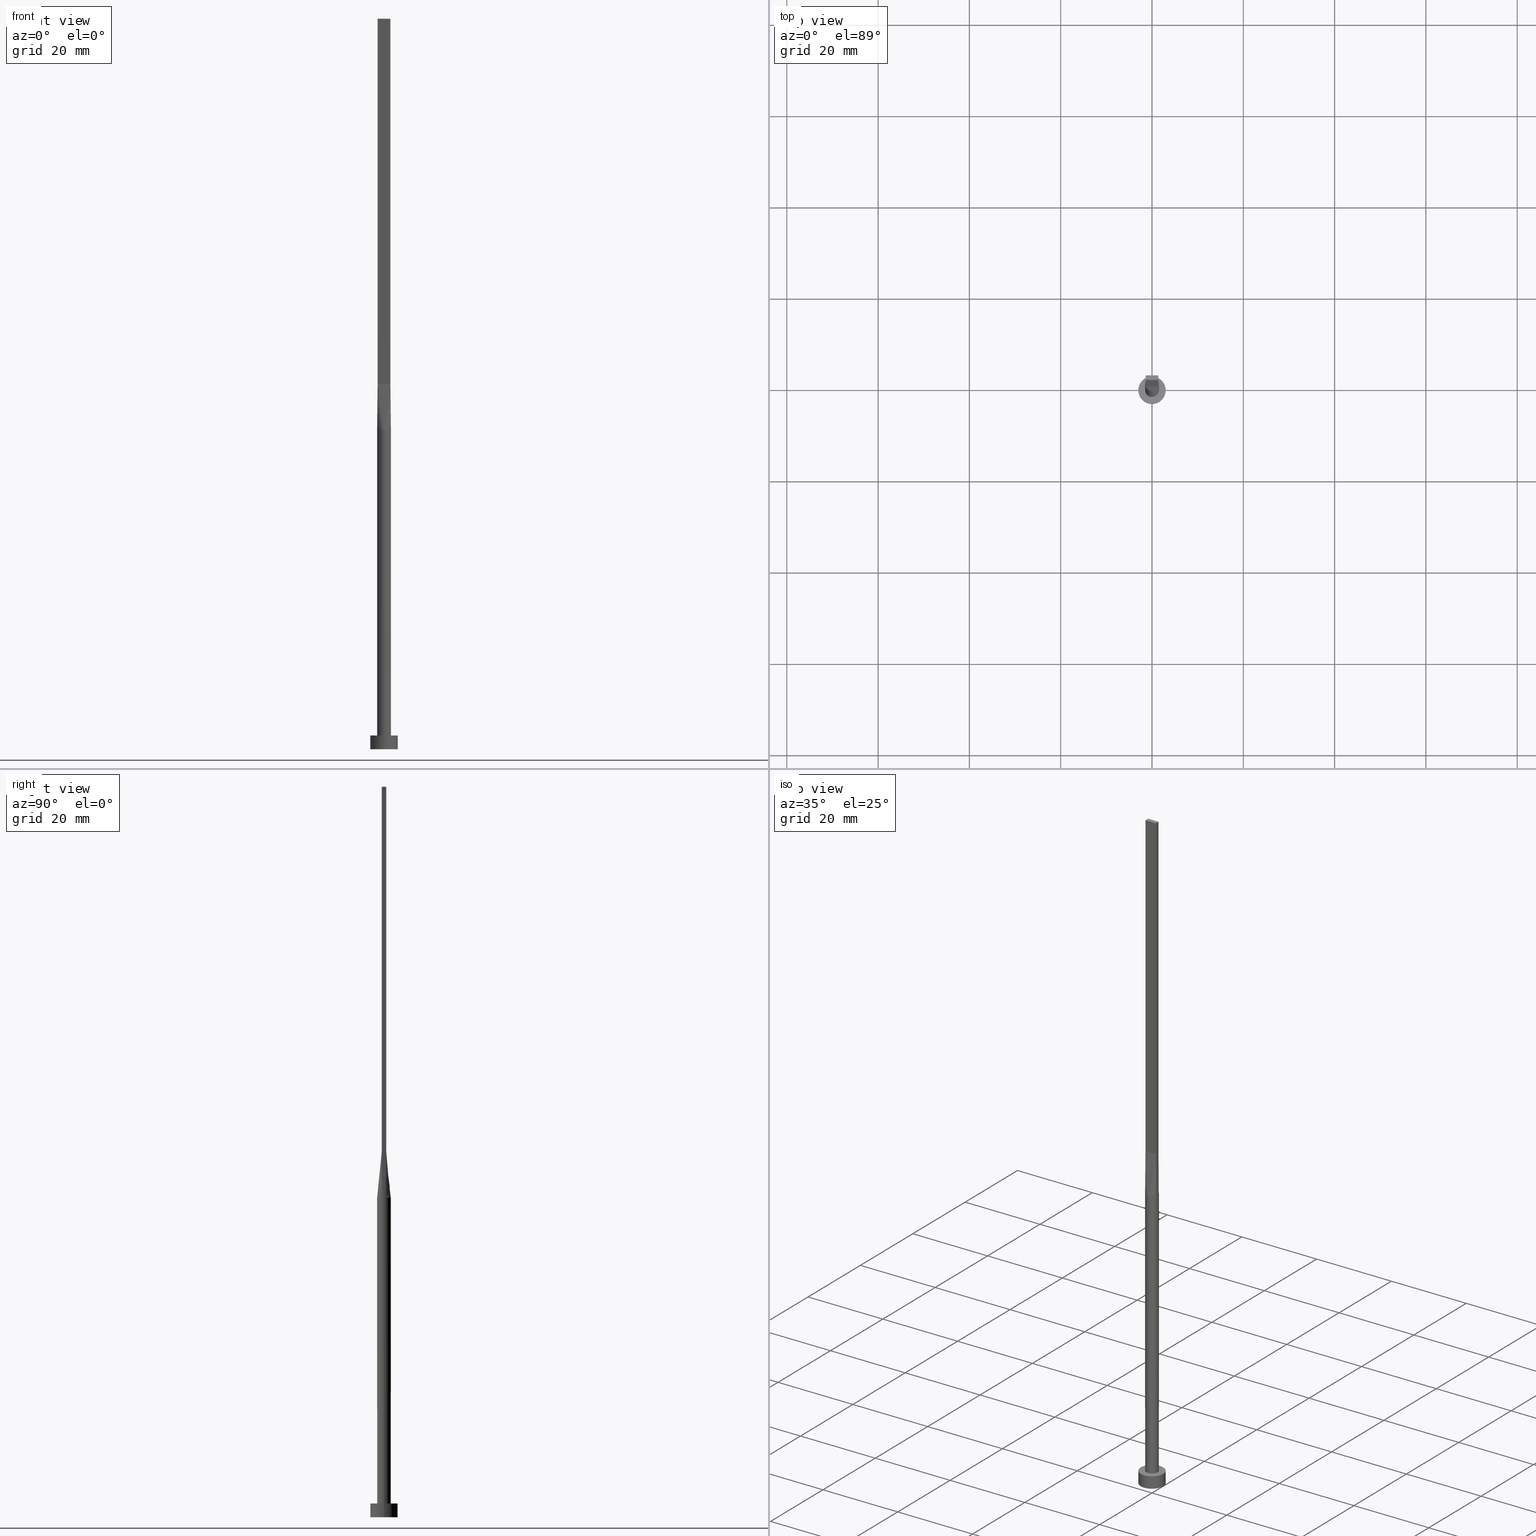
[diagram: canonical four-view strip — front | top / right | iso, engineering-drawing reading convention]
A machine part, canonical four-view strip (front | top / right | iso — engineering-drawing reading convention). The complete STEP part file that produces these views, byte-faithful:
ISO-10303-21;
HEADER;
FILE_DESCRIPTION (( 'STEP AP203' ),
    '1' );
FILE_NAME ('9490.STEP',
    '2026-02-12T09:07:40',
    ( '' ),
    ( '' ),
    'SwSTEP 2.0',
    'SolidWorks 2019',
    '' );
FILE_SCHEMA (( 'CONFIG_CONTROL_DESIGN' ));
ENDSEC;

DATA;
#1 = DIRECTION ( 'NONE',  ( -0.000000000000000000, -0.000000000000000000, -1.000000000000000000 ) ) ;
#2 = CARTESIAN_POINT ( 'NONE',  ( 1.412612867392256222, -0.5045045954972351421, 70.00000000000000000 ) ) ;
#3 = ORIENTED_EDGE ( 'NONE', *, *, #88, .T. ) ;
#4 = CARTESIAN_POINT ( 'NONE',  ( 0.8182264876570948253, 1.266912425724810110, 70.00000000000000000 ) ) ;
#5 = CARTESIAN_POINT ( 'NONE',  ( -1.412612867392256444, -0.5045045954972340319, 70.00000000000000000 ) ) ;
#6 = ORIENTED_EDGE ( 'NONE', *, *, #512, .F. ) ;
#7 = CARTESIAN_POINT ( 'NONE',  ( 1.373020107211261109, 0.6153643240040217455, 70.00000000000001421 ) ) ;
#8 = VERTEX_POINT ( 'NONE', #453 ) ;
#9 = EDGE_CURVE ( 'NONE', #415, #16, #509, .T. ) ;
#10 = ORIENTED_EDGE ( 'NONE', *, *, #210, .T. ) ;
#11 = PLANE ( 'NONE',  #291 ) ;
#12 = CARTESIAN_POINT ( 'NONE',  ( -1.316960349798174557, 0.7311494208568980468, 70.00000000000001421 ) ) ;
#13 = VECTOR ( 'NONE', #61, 1000.000000000000000 ) ;
#14 = CARTESIAN_POINT ( 'NONE',  ( -1.161819288130433891, 0.9587178835757675932, 70.00000000000001421 ) ) ;
#15 = CARTESIAN_POINT ( 'NONE',  ( 1.399999999999999689, 0.5000000000000002220, 160.0000000000000000 ) ) ;
#16 = VERTEX_POINT ( 'NONE', #312 ) ;
#17 = CARTESIAN_POINT ( 'NONE',  ( 1.283333333333333437, 0.5000000000000002220, 79.99999999999998579 ) ) ;
#18 = FACE_OUTER_BOUND ( 'NONE', #142, .T. ) ;
#19 = CC_DESIGN_PERSON_AND_ORGANIZATION_ASSIGNMENT ( #266, #539, ( #102 ) ) ;
#20 = ORIENTED_EDGE ( 'NONE', *, *, #365, .F. ) ;
#21 = AXIS2_PLACEMENT_3D ( 'NONE', #351, #124, #300 ) ;
#22 = CARTESIAN_POINT ( 'NONE',  ( -1.399999999999999911, -0.4999999999999995559, 80.00000000000000000 ) ) ;
#23 = CARTESIAN_POINT ( 'NONE',  ( -1.412646936588081381, 0.5045169241220069933, 70.00000000000000000 ) ) ;
#24 = CARTESIAN_POINT ( 'NONE',  ( -1.062433464748102407, 1.070418989248103525, 69.99999999999998579 ) ) ;
#25 = EDGE_CURVE ( 'NONE', #520, #415, #104, .T. ) ;
#26 = DIRECTION ( 'NONE',  ( -2.168404344971009361E-16, -1.000000000000000000, 0.000000000000000000 ) ) ;
#27 = ORIENTED_EDGE ( 'NONE', *, *, #529, .T. ) ;
#28 = CARTESIAN_POINT ( 'NONE',  ( 1.399999999999999911, -0.4999999999999997780, 160.0000000000000000 ) ) ;
#29 = CARTESIAN_POINT ( 'NONE',  ( -3.000000000000000444, 0.000000000000000000, 0.000000000000000000 ) ) ;
#30 = DIRECTION ( 'NONE',  ( -0.000000000000000000, -0.000000000000000000, -1.000000000000000000 ) ) ;
#31 = AXIS2_PLACEMENT_3D ( 'NONE', #190, #543, #376 ) ;
#32 = ORIENTED_EDGE ( 'NONE', *, *, #220, .T. ) ;
#33 = PLANE ( 'NONE',  #90 ) ;
#34 = EDGE_CURVE ( 'NONE', #57, #48, #232, .T. ) ;
#35 = PERSON_AND_ORGANIZATION ( #279, #153 ) ;
#36 = B_SPLINE_SURFACE_WITH_KNOTS ( 'NONE', 3, 1, ( 
 ( #185, #315 ),
 ( #359, #268 ),
 ( #449, #532 ),
 ( #488, #411 ),
 ( #82, #407 ),
 ( #5, #265 ) ),
 .UNSPECIFIED., .F., .F., .F.,
 ( 4, 2, 4 ),
 ( 2, 2 ),
 ( 0.000000000000000000, 0.5000000000000000000, 1.000000000000000000 ),
 ( 0.000000000000000000, 1.000000000000000000 ),
 .UNSPECIFIED. ) ;
#37 = AXIS2_PLACEMENT_3D ( 'NONE', #292, #397, #571 ) ;
#38 = COORDINATED_UNIVERSAL_TIME_OFFSET ( 1, 0, .AHEAD. ) ;
#39 = CARTESIAN_POINT ( 'NONE',  ( 1.399999999999999911, -0.4999999999999997780, 80.00000000000000000 ) ) ;
#40 = APPROVAL_DATE_TIME ( #307, #394 ) ;
#41 = DIRECTION ( 'NONE',  ( 1.000000000000000000, 0.000000000000000000, 0.000000000000000000 ) ) ;
#42 = ORIENTED_EDGE ( 'NONE', *, *, #504, .F. ) ;
#43 = EDGE_CURVE ( 'NONE', #238, #298, #75, .T. ) ;
#44 = EDGE_LOOP ( 'NONE', ( #466, #368, #481, #186 ) ) ;
#45 = ORIENTED_EDGE ( 'NONE', *, *, #485, .F. ) ;
#46 = AXIS2_PLACEMENT_3D ( 'NONE', #548, #325, #280 ) ;
#47 = CC_DESIGN_SECURITY_CLASSIFICATION ( #102, ( #465 ) ) ;
#48 = VERTEX_POINT ( 'NONE', #337 ) ;
#49 = ADVANCED_FACE ( 'NONE', ( #514 ), #106, .T. ) ;
#50 = EDGE_CURVE ( 'NONE', #323, #251, #184, .T. ) ;
#51 = ORIENTED_EDGE ( 'NONE', *, *, #108, .F. ) ;
#52 = VERTEX_POINT ( 'NONE', #400 ) ;
#53 = CARTESIAN_POINT ( 'NONE',  ( 1.500000000000000222, 1.836970198721030181E-16, 3.000000000000000000 ) ) ;
#54 = PLANE ( 'NONE',  #474 ) ;
#55 = ORIENTED_EDGE ( 'NONE', *, *, #523, .F. ) ;
#56 = CARTESIAN_POINT ( 'NONE',  ( 1.062433464748102407, 1.070418989248103525, 70.00000000000000000 ) ) ;
#57 = VERTEX_POINT ( 'NONE', #472 ) ;
#58 = CARTESIAN_POINT ( 'NONE',  ( 0.000000000000000000, 0.000000000000000000, 70.00000000000000000 ) ) ;
#59 = DIRECTION ( 'NONE',  ( 0.000000000000000000, 0.000000000000000000, 1.000000000000000000 ) ) ;
#60 = CC_DESIGN_APPROVAL ( #155, ( #258 ) ) ;
#61 = DIRECTION ( 'NONE',  ( 1.000000000000000000, -7.744301232039317914E-17, 0.000000000000000000 ) ) ;
#62 = B_SPLINE_CURVE_WITH_KNOTS ( 'NONE', 3,
 ( #422, #7, #500, #89, #461, #4, #230, #419, #92, #201, #552, #103, #152, #107, #14, #100, #381, #198 ),
 .UNSPECIFIED., .F., .F.,
 ( 4, 2, 2, 2, 2, 2, 2, 2, 4 ),
 ( 0.000000000000000000, 0.1250000000000000000, 0.2500000000000000000, 0.3750000000000000000, 0.5000000000000000000, 0.6250000000000000000, 0.7500000000000000000, 0.8750000000000000000, 1.000000000000000000 ),
 .UNSPECIFIED. ) ;
#63 = VECTOR ( 'NONE', #30, 1000.000000000000000 ) ;
#64 = VECTOR ( 'NONE', #26, 1000.000000000000000 ) ;
#65 = DIRECTION ( 'NONE',  ( -0.000000000000000000, -0.000000000000000000, -1.000000000000000000 ) ) ;
#66 = ORIENTED_EDGE ( 'NONE', *, *, #385, .T. ) ;
#67 = CARTESIAN_POINT ( 'NONE',  ( -0.6732153042498576490, 1.351288176626052495, 70.00000000000000000 ) ) ;
#68 = EDGE_CURVE ( 'NONE', #146, #251, #249, .T. ) ;
#69 = CARTESIAN_POINT ( 'NONE',  ( -1.166666666666666963, -0.4999999999999995559, 79.99999999999998579 ) ) ;
#70 = EDGE_LOOP ( 'NONE', ( #437, #191, #369, #211, #542 ) ) ;
#71 = CARTESIAN_POINT ( 'NONE',  ( -1.399999999999999689, 0.5000000000000002220, 80.00000000000000000 ) ) ;
#72 = DIRECTION ( 'NONE',  ( -0.000000000000000000, -0.000000000000000000, -1.000000000000000000 ) ) ;
#73 = ORIENTED_EDGE ( 'NONE', *, *, #365, .T. ) ;
#74 = COORDINATED_UNIVERSAL_TIME_OFFSET ( 1, 0, .AHEAD. ) ;
#75 = CIRCLE ( 'NONE', #412, 1.500000000000000222 ) ;
#76 = EDGE_CURVE ( 'NONE', #468, #323, #384, .T. ) ;
#77 = VECTOR ( 'NONE', #550, 1000.000000000000000 ) ;
#78 = ORIENTED_EDGE ( 'NONE', *, *, #318, .F. ) ;
#79 = CARTESIAN_POINT ( 'NONE',  ( 1.373020107211260665, -0.6153643240040224116, 70.00000000000001421 ) ) ;
#80 = CARTESIAN_POINT ( 'NONE',  ( 1.062433464748102629, -1.070418989248103747, 69.99999999999998579 ) ) ;
#81 = APPROVAL_DATE_TIME ( #398, #155 ) ;
#82 = CARTESIAN_POINT ( 'NONE',  ( -1.469173953365107144, -0.3461335547732520834, 70.00000000000000000 ) ) ;
#83 = AXIS2_PLACEMENT_3D ( 'NONE', #363, #306, #41 ) ;
#84 = EDGE_CURVE ( 'NONE', #8, #269, #208, .T. ) ;
#85 = ORIENTED_EDGE ( 'NONE', *, *, #464, .F. ) ;
#86 = ORIENTED_EDGE ( 'NONE', *, *, #233, .T. ) ;
#87 = CARTESIAN_POINT ( 'NONE',  ( -1.399999999999999689, 0.5000000000000002220, 80.00000000000000000 ) ) ;
#88 = EDGE_CURVE ( 'NONE', #238, #16, #563, .T. ) ;
#89 = CARTESIAN_POINT ( 'NONE',  ( 1.161819288130433891, 0.9587178835757675932, 70.00000000000000000 ) ) ;
#90 = AXIS2_PLACEMENT_3D ( 'NONE', #399, #396, #570 ) ;
#91 = ORIENTED_EDGE ( 'NONE', *, *, #529, .F. ) ;
#92 = CARTESIAN_POINT ( 'NONE',  ( 0.1761797990592590679, 1.500000000000000222, 70.00000000000000000 ) ) ;
#93 = CARTESIAN_POINT ( 'NONE',  ( 1.500000000000000222, 1.836970198721030181E-16, 70.00000000000000000 ) ) ;
#94 = PLANE ( 'NONE',  #577 ) ;
#95 = CARTESIAN_POINT ( 'NONE',  ( 0.000000000000000000, 0.000000000000000000, 0.000000000000000000 ) ) ;
#96 = EDGE_LOOP ( 'NONE', ( #45, #308, #138, #463, #272, #281 ) ) ;
#97 = DIRECTION ( 'NONE',  ( 1.000000000000000000, 0.000000000000000000, -0.000000000000000000 ) ) ;
#98 = DIRECTION ( 'NONE',  ( -1.000000000000000000, 0.000000000000000000, 0.000000000000000000 ) ) ;
#99 =( NAMED_UNIT ( * ) SI_UNIT ( $, .STERADIAN. ) SOLID_ANGLE_UNIT ( ) );
#100 = CARTESIAN_POINT ( 'NONE',  ( -1.316960349798174557, 0.7311494208568980468, 70.00000000000001421 ) ) ;
#101 = CARTESIAN_POINT ( 'NONE',  ( 1.500000000000000000, 1.053334699963867185E-17, 70.00000000000000000 ) ) ;
#102 = SECURITY_CLASSIFICATION ( '', '', #442 ) ;
#103 = CARTESIAN_POINT ( 'NONE',  ( -0.6732153042498576490, 1.351288176626052495, 70.00000000000000000 ) ) ;
#104 = LINE ( 'NONE', #93, #334 ) ;
#105 = CARTESIAN_POINT ( 'NONE',  ( -0.6732153042498583151, -1.351288176626052051, 70.00000000000000000 ) ) ;
#106 = CYLINDRICAL_SURFACE ( 'NONE', #173, 3.000000000000000444 ) ;
#107 = CARTESIAN_POINT ( 'NONE',  ( -1.062433464748102407, 1.070418989248103525, 69.99999999999998579 ) ) ;
#108 = EDGE_CURVE ( 'NONE', #505, #298, #165, .T. ) ;
#109 = CARTESIAN_POINT ( 'NONE',  ( 0.5833333333333348136, 0.5000000000000002220, 79.99999999999998579 ) ) ;
#110 = CARTESIAN_POINT ( 'NONE',  ( 1.399999999999999689, 0.3333333333333350912, 79.99999999999998579 ) ) ;
#111 = DIRECTION ( 'NONE',  ( -2.168404344971008868E-16, 1.000000000000000000, -0.000000000000000000 ) ) ;
#112 = CARTESIAN_POINT ( 'NONE',  ( -1.399999999999999689, 0.5000000000000002220, 80.00000000000000000 ) ) ;
#113 = VECTOR ( 'NONE', #361, 1000.000000000000114 ) ;
#114 = CARTESIAN_POINT ( 'NONE',  ( -1.406306433696128178, -0.5022522977486166829, 75.00000000000001421 ) ) ;
#115 = EDGE_LOOP ( 'NONE', ( #27, #389, #6, #460 ) ) ;
#116 = CARTESIAN_POINT ( 'NONE',  ( -1.373020107211261331, 0.6153643240040217455, 70.00000000000001421 ) ) ;
#117 = CARTESIAN_POINT ( 'NONE',  ( 0.000000000000000000, 0.000000000000000000, 3.000000000000000000 ) ) ;
#118 = ORIENTED_EDGE ( 'NONE', *, *, #445, .F. ) ;
#119 = CARTESIAN_POINT ( 'NONE',  ( 0.6732153042498577600, 1.351288176626052717, 70.00000000000000000 ) ) ;
#120 = CC_DESIGN_DATE_AND_TIME_ASSIGNMENT ( #212, #366, ( #258 ) ) ;
#121 = EDGE_LOOP ( 'NONE', ( #78, #493 ) ) ;
#122 = APPROVAL_STATUS ( 'not_yet_approved' ) ;
#123 = CARTESIAN_POINT ( 'NONE',  ( 1.399999999999999911, -0.4999999999999997780, 80.00000000000000000 ) ) ;
#124 = DIRECTION ( 'NONE',  ( -0.000000000000000000, -0.000000000000000000, -1.000000000000000000 ) ) ;
#125 = CARTESIAN_POINT ( 'NONE',  ( 1.166666666666666075, -0.4999999999999997780, 79.99999999999998579 ) ) ;
#126 = VECTOR ( 'NONE', #304, 1000.000000000000000 ) ;
#127 = CALENDAR_DATE ( 2026, 12, 2 ) ;
#128 = CARTESIAN_POINT ( 'NONE',  ( 0.8182264876570946033, -1.266912425724810998, 70.00000000000000000 ) ) ;
#129 = CARTESIAN_POINT ( 'NONE',  ( 1.399999999999999689, 0.5000000000000002220, 160.0000000000000000 ) ) ;
#130 = COORDINATED_UNIVERSAL_TIME_OFFSET ( 1, 0, .AHEAD. ) ;
#131 = CARTESIAN_POINT ( 'NONE',  ( 1.161819288130433669, -0.9587178835757682593, 70.00000000000001421 ) ) ;
#132 = DIRECTION ( 'NONE',  ( 2.168404344971009361E-16, 1.000000000000000000, 0.000000000000000000 ) ) ;
#133 = EDGE_CURVE ( 'NONE', #293, #52, #348, .T. ) ;
#134 = CALENDAR_DATE ( 2026, 12, 2 ) ;
#135 = CARTESIAN_POINT ( 'NONE',  ( 0.4666666666666653418, -0.4999999999999995559, 79.99999999999998579 ) ) ;
#136 = DATE_TIME_ROLE ( 'classification_date' ) ;
#137 = ORIENTED_EDGE ( 'NONE', *, *, #50, .T. ) ;
#138 = ORIENTED_EDGE ( 'NONE', *, *, #9, .T. ) ;
#139 = DESIGN_CONTEXT ( 'detailed design', #287, 'design' ) ;
#140 = EDGE_CURVE ( 'NONE', #497, #251, #204, .T. ) ;
#141 = ORIENTED_EDGE ( 'NONE', *, *, #432, .T. ) ;
#142 = EDGE_LOOP ( 'NONE', ( #227, #450, #326, #328 ) ) ;
#143 = DIRECTION ( 'NONE',  ( 0.000000000000000000, 0.000000000000000000, 1.000000000000000000 ) ) ;
#144 = APPROVAL_PERSON_ORGANIZATION ( #35, #155, #408 ) ;
#145 = CARTESIAN_POINT ( 'NONE',  ( -0.8182264876570950474, 1.266912425724810554, 70.00000000000000000 ) ) ;
#146 = VERTEX_POINT ( 'NONE', #23 ) ;
#147 = DIRECTION ( 'NONE',  ( -2.168404344971009361E-16, -1.000000000000000000, 0.000000000000000000 ) ) ;
#148 = ORIENTED_EDGE ( 'NONE', *, *, #553, .T. ) ;
#149 = CARTESIAN_POINT ( 'NONE',  ( 1.161819288130433891, 0.9587178835757675932, 70.00000000000000000 ) ) ;
#150 = LINE ( 'NONE', #329, #113 ) ;
#151 = ADVANCED_FACE ( 'NONE', ( #336 ), #189, .T. ) ;
#152 = CARTESIAN_POINT ( 'NONE',  ( -0.8182264876570950474, 1.266912425724810554, 70.00000000000000000 ) ) ;
#153 = ORGANIZATION ( 'NEUR�EN�', 'NEUR�EN�', '' ) ;
#154 = CARTESIAN_POINT ( 'NONE',  ( 1.406306433696127955, -0.5022522977486173490, 75.00000000000001421 ) ) ;
#155 = APPROVAL ( #255, 'NEUR�EN�' ) ;
#156 = DIRECTION ( 'NONE',  ( 1.000000000000000000, 0.000000000000000000, 0.000000000000000000 ) ) ;
#157 = ADVANCED_FACE ( 'NONE', ( #217 ), #257, .F. ) ;
#158 = CARTESIAN_POINT ( 'NONE',  ( -0.4666666666666679508, -0.4999999999999995559, 79.99999999999998579 ) ) ;
#159 = CARTESIAN_POINT ( 'NONE',  ( 0.8166666666666677621, 0.5000000000000002220, 79.99999999999998579 ) ) ;
#160 = DIRECTION ( 'NONE',  ( -1.000000000000000000, 0.000000000000000000, 0.000000000000000000 ) ) ;
#161 = CARTESIAN_POINT ( 'NONE',  ( -0.8166666666666652086, 0.5000000000000002220, 79.99999999999998579 ) ) ;
#162 = FACE_OUTER_BOUND ( 'NONE', #277, .T. ) ;
#163 = CIRCLE ( 'NONE', #254, 3.000000000000000444 ) ;
#164 = AXIS2_PLACEMENT_3D ( 'NONE', #95, #459, #533 ) ;
#165 = LINE ( 'NONE', #114, #209 ) ;
#166 = DIRECTION ( 'NONE',  ( 0.001261285608005576668, -0.0004504591457162014255, 0.9999991031221843185 ) ) ;
#167 = CARTESIAN_POINT ( 'NONE',  ( -1.062433464748102852, -1.070418989248103081, 70.00000000000000000 ) ) ;
#168 = EDGE_LOOP ( 'NONE', ( #343, #85, #458, #410 ) ) ;
#169 = DIRECTION ( 'NONE',  ( 0.000000000000000000, 0.000000000000000000, 1.000000000000000000 ) ) ;
#170 = CARTESIAN_POINT ( 'NONE',  ( 0.8166666666666658747, -0.4999999999999997780, 79.99999999999998579 ) ) ;
#171 = PERSON_AND_ORGANIZATION_ROLE ( 'creator' ) ;
#172 = CARTESIAN_POINT ( 'NONE',  ( 0.000000000000000000, 0.000000000000000000, 70.00000000000000000 ) ) ;
#173 = AXIS2_PLACEMENT_3D ( 'NONE', #226, #1, #495 ) ;
#174 = LINE ( 'NONE', #129, #126 ) ;
#175 = PRODUCT_DEFINITION_SHAPE ( 'NONE', 'NONE',  #258 ) ;
#176 = APPROVAL_DATE_TIME ( #252, #202 ) ;
#177 = DIRECTION ( 'NONE',  ( 1.000000000000000000, 0.000000000000000000, 0.000000000000000000 ) ) ;
#178 = FACE_BOUND ( 'NONE', #121, .T. ) ;
#179 = ADVANCED_FACE ( 'NONE', ( #303 ), #405, .T. ) ;
#180 = CARTESIAN_POINT ( 'NONE',  ( 1.283333333333332993, -0.4999999999999997780, 79.99999999999998579 ) ) ;
#181 = DIRECTION ( 'NONE',  ( 1.000000000000000000, 2.664535259100375697E-15, 0.000000000000000000 ) ) ;
#182 = MECHANICAL_CONTEXT ( 'NONE', #330, 'mechanical' ) ;
#183 = ORIENTED_EDGE ( 'NONE', *, *, #318, .T. ) ;
#184 = LINE ( 'NONE', #87, #576 ) ;
#185 = CARTESIAN_POINT ( 'NONE',  ( -1.412612867392256444, 0.5045045954972343649, 70.00000000000000000 ) ) ;
#186 = ORIENTED_EDGE ( 'NONE', *, *, #406, .T. ) ;
#187 = CARTESIAN_POINT ( 'NONE',  ( 1.399999999999999689, -0.1666666666666641039, 79.99999999999998579 ) ) ;
#188 = VERTEX_POINT ( 'NONE', #403 ) ;
#189 = B_SPLINE_SURFACE_WITH_KNOTS ( 'NONE', 3, 1, ( 
 ( #476, #433 ),
 ( #380, #568 ),
 ( #206, #69 ),
 ( #393, #244 ),
 ( #167, #430 ),
 ( #386, #556 ),
 ( #105, #158 ),
 ( #338, #560 ),
 ( #342, #574 ),
 ( #357, #448 ),
 ( #525, #215 ),
 ( #441, #135 ),
 ( #128, #484 ),
 ( #80, #170 ),
 ( #131, #572 ),
 ( #443, #125 ),
 ( #79, #180 ),
 ( #537, #39 ) ),
 .UNSPECIFIED., .F., .F., .F.,
 ( 4, 2, 2, 2, 2, 2, 2, 2, 4 ),
 ( 2, 2 ),
 ( 0.000000000000000000, 0.1250000000000000000, 0.2500000000000000000, 0.3750000000000000000, 0.5000000000000000000, 0.6250000000000000000, 0.7500000000000000000, 0.8750000000000000000, 1.000000000000000000 ),
 ( 0.000000000000000000, 1.000000000000000000 ),
 .UNSPECIFIED. ) ;
#190 = CARTESIAN_POINT ( 'NONE',  ( 0.000000000000000000, 0.000000000000000000, 3.000000000000000000 ) ) ;
#191 = ORIENTED_EDGE ( 'NONE', *, *, #485, .T. ) ;
#192 = LINE ( 'NONE', #378, #77 ) ;
#193 = AXIS2_PLACEMENT_3D ( 'NONE', #538, #580, #181 ) ;
#194 = DIRECTION ( 'NONE',  ( -0.000000000000000000, -0.000000000000000000, -1.000000000000000000 ) ) ;
#195 = EDGE_LOOP ( 'NONE', ( #536, #20 ) ) ;
#196 = DIRECTION ( 'NONE',  ( 0.000000000000000000, 0.000000000000000000, 1.000000000000000000 ) ) ;
#197 = ADVANCED_FACE ( 'NONE', ( #178, #409 ), #11, .T. ) ;
#198 = CARTESIAN_POINT ( 'NONE',  ( -1.412646936588081381, 0.5045169241220069933, 70.00000000000000000 ) ) ;
#199 = ORIENTED_EDGE ( 'NONE', *, *, #140, .F. ) ;
#200 = CARTESIAN_POINT ( 'NONE',  ( -3.000000000000000444, 0.000000000000000000, 3.000000000000000000 ) ) ;
#201 = CARTESIAN_POINT ( 'NONE',  ( -0.1761797990592590402, 1.499999999999999778, 69.99999999999998579 ) ) ;
#202 = APPROVAL ( #535, 'NEUR�EN�' ) ;
#203 = LOCAL_TIME ( 10, 7, 40.00000000000000000, #527 ) ;
#204 = LINE ( 'NONE', #240, #544 ) ;
#205 = PLANE ( 'NONE',  #37 ) ;
#206 = CARTESIAN_POINT ( 'NONE',  ( -1.316960349798174557, -0.7311494208568978248, 70.00000000000000000 ) ) ;
#207 = CARTESIAN_POINT ( 'NONE',  ( 0.9333333333333342363, 0.5000000000000002220, 79.99999999999998579 ) ) ;
#208 = LINE ( 'NONE', #200, #63 ) ;
#209 = VECTOR ( 'NONE', #473, 1000.000000000000114 ) ;
#210 = EDGE_CURVE ( 'NONE', #522, #146, #62, .T. ) ;
#211 = ORIENTED_EDGE ( 'NONE', *, *, #76, .F. ) ;
#212 = DATE_AND_TIME ( #362, #222 ) ;
#213 = FACE_OUTER_BOUND ( 'NONE', #507, .T. ) ;
#214 = CARTESIAN_POINT ( 'NONE',  ( 3.000000000000000444, 3.673940397442060361E-16, 3.000000000000000000 ) ) ;
#215 = CARTESIAN_POINT ( 'NONE',  ( 0.2333333333333319215, -0.4999999999999995559, 79.99999999999998579 ) ) ;
#216 = APPLICATION_PROTOCOL_DEFINITION ( 'international standard', 'config_control_design', 1994, #287 ) ;
#217 = FACE_OUTER_BOUND ( 'NONE', #168, .T. ) ;
#218 = FACE_OUTER_BOUND ( 'NONE', #115, .T. ) ;
#219 = PERSON_AND_ORGANIZATION_ROLE ( 'design_supplier' ) ;
#220 = EDGE_CURVE ( 'NONE', #188, #468, #333, .T. ) ;
#221 = DIRECTION ( 'NONE',  ( -0.000000000000000000, -0.000000000000000000, -1.000000000000000000 ) ) ;
#222 = LOCAL_TIME ( 10, 7, 40.00000000000000000, #299 ) ;
#223 = DIRECTION ( 'NONE',  ( -1.000000000000000000, -2.168404344971008868E-16, 0.000000000000000000 ) ) ;
#224 = SHAPE_DEFINITION_REPRESENTATION ( #175, #518 ) ;
#225 = CC_DESIGN_PERSON_AND_ORGANIZATION_ASSIGNMENT ( #355, #579, ( #258 ) ) ;
#226 = CARTESIAN_POINT ( 'NONE',  ( 0.000000000000000000, 0.000000000000000000, 3.000000000000000000 ) ) ;
#227 = ORIENTED_EDGE ( 'NONE', *, *, #523, .T. ) ;
#228 = CC_DESIGN_APPROVAL ( #394, ( #102 ) ) ;
#229 = CARTESIAN_POINT ( 'NONE',  ( 1.399999999999999911, -0.3333333333333315385, 79.99999999999998579 ) ) ;
#230 = CARTESIAN_POINT ( 'NONE',  ( 0.6732153042498577600, 1.351288176626052717, 70.00000000000000000 ) ) ;
#231 = CARTESIAN_POINT ( 'NONE',  ( 1.399999999999999689, 0.5000000000000002220, 80.00000000000000000 ) ) ;
#232 = LINE ( 'NONE', #541, #263 ) ;
#233 = EDGE_CURVE ( 'NONE', #298, #188, #555, .T. ) ;
#234 = CARTESIAN_POINT ( 'NONE',  ( -0.1166666666666646840, 0.5000000000000002220, 79.99999999999998579 ) ) ;
#235 = CARTESIAN_POINT ( 'NONE',  ( 1.399999999999999689, 0.5000000000000002220, 80.00000000000000000 ) ) ;
#236 = CIRCLE ( 'NONE', #46, 3.000000000000000444 ) ;
#237 = CARTESIAN_POINT ( 'NONE',  ( -0.3520402531411749858, 1.468082505288407891, 70.00000000000001421 ) ) ;
#238 = VERTEX_POINT ( 'NONE', #288 ) ;
#239 = ADVANCED_FACE ( 'NONE', ( #477 ), #36, .T. ) ;
#240 = CARTESIAN_POINT ( 'NONE',  ( -1.399999999999999689, 0.5000000000000002220, 160.0000000000000000 ) ) ;
#241 = DIRECTION ( 'NONE',  ( 0.000000000000000000, 0.000000000000000000, 1.000000000000000000 ) ) ;
#242 = AXIS2_PLACEMENT_3D ( 'NONE', #58, #196, #284 ) ;
#243 = CARTESIAN_POINT ( 'NONE',  ( -1.406306433696127955, 0.5022522977486171269, 75.00000000000001421 ) ) ;
#244 = CARTESIAN_POINT ( 'NONE',  ( -0.9333333333333340143, -0.4999999999999995559, 79.99999999999998579 ) ) ;
#245 = CARTESIAN_POINT ( 'NONE',  ( 1.373020107211261109, 0.6153643240040217455, 70.00000000000001421 ) ) ;
#246 = CARTESIAN_POINT ( 'NONE',  ( 1.499999999999999556, 0.1732137494637011610, 70.00000000000000000 ) ) ;
#247 = CARTESIAN_POINT ( 'NONE',  ( -1.500000000000000222, 0.000000000000000000, 70.00000000000000000 ) ) ;
#248 = CARTESIAN_POINT ( 'NONE',  ( -1.399999999999999911, -0.4999999999999995559, 160.0000000000000000 ) ) ;
#249 = LINE ( 'NONE', #243, #496 ) ;
#250 = EDGE_CURVE ( 'NONE', #188, #520, #285, .T. ) ;
#251 = VERTEX_POINT ( 'NONE', #372 ) ;
#252 = DATE_AND_TIME ( #134, #390 ) ;
#253 = AXIS2_PLACEMENT_3D ( 'NONE', #417, #547, #324 ) ;
#254 = AXIS2_PLACEMENT_3D ( 'NONE', #274, #503, #456 ) ;
#255 = APPROVAL_STATUS ( 'not_yet_approved' ) ;
#256 = CYLINDRICAL_SURFACE ( 'NONE', #21, 1.500000000000000222 ) ;
#257 = PLANE ( 'NONE',  #510 ) ;
#258 = PRODUCT_DEFINITION ( 'NEZN�M�', '', #465, #139 ) ;
#259 = ADVANCED_FACE ( 'NONE', ( #364 ), #528, .T. ) ;
#260 = PRODUCT ( '9490', '9490', '', ( #182 ) ) ;
#261 = PERSON_AND_ORGANIZATION_ROLE ( 'design_owner' ) ;
#262 = CARTESIAN_POINT ( 'NONE',  ( -1.399999999999999911, -0.4999999999999995559, 80.00000000000000000 ) ) ;
#263 = VECTOR ( 'NONE', #429, 1000.000000000000000 ) ;
#264 = VECTOR ( 'NONE', #506, 1000.000000000000000 ) ;
#265 = CARTESIAN_POINT ( 'NONE',  ( -1.399999999999999911, -0.4999999999999995559, 80.00000000000000000 ) ) ;
#266 = PERSON_AND_ORGANIZATION ( #279, #153 ) ;
#267 = CARTESIAN_POINT ( 'NONE',  ( -1.399999999999999689, 0.5000000000000002220, 160.0000000000000000 ) ) ;
#268 = CARTESIAN_POINT ( 'NONE',  ( -1.399999999999999689, 0.3333333333333339255, 79.99999999999998579 ) ) ;
#269 = VERTEX_POINT ( 'NONE', #29 ) ;
#270 = CARTESIAN_POINT ( 'NONE',  ( 1.469173953365106700, -0.3461335547732530271, 70.00000000000001421 ) ) ;
#271 = APPROVAL_PERSON_ORGANIZATION ( #404, #394, #486 ) ;
#272 = ORIENTED_EDGE ( 'NONE', *, *, #432, .F. ) ;
#273 = EDGE_LOOP ( 'NONE', ( #141, #545, #51, #91, #314 ) ) ;
#274 = CARTESIAN_POINT ( 'NONE',  ( 0.000000000000000000, 0.000000000000000000, 0.000000000000000000 ) ) ;
#275 = DIRECTION ( 'NONE',  ( 1.000000000000000000, 0.000000000000000000, -0.000000000000000000 ) ) ;
#276 = ADVANCED_FACE ( 'NONE', ( #392 ), #256, .T. ) ;
#277 = EDGE_LOOP ( 'NONE', ( #42, #421, #73, #413 ) ) ;
#278 = CARTESIAN_POINT ( 'NONE',  ( 0.2333333333333351967, 0.5000000000000002220, 79.99999999999998579 ) ) ;
#279 = PERSON ( 'NEUR�EN�', 'NEUR�EN�', 'NEUR�EN�', ('NEUR�EN�'), ('NEUR�EN�'), ('NEUR�EN�') ) ;
#280 = DIRECTION ( 'NONE',  ( 1.000000000000000000, 0.000000000000000000, 0.000000000000000000 ) ) ;
#281 = ORIENTED_EDGE ( 'NONE', *, *, #210, .F. ) ;
#282 = CARTESIAN_POINT ( 'NONE',  ( -0.5833333333333314830, 0.5000000000000002220, 79.99999999999998579 ) ) ;
#283 = EDGE_LOOP ( 'NONE', ( #86, #32, #492, #371 ) ) ;
#284 = DIRECTION ( 'NONE',  ( 1.000000000000000000, 0.000000000000000000, 0.000000000000000000 ) ) ;
#285 = CIRCLE ( 'NONE', #193, 1.500000000000000222 ) ;
#286 = PRODUCT_RELATED_PRODUCT_CATEGORY ( 'detail', '', ( #260 ) ) ;
#287 = APPLICATION_CONTEXT ( 'configuration controlled 3d designs of mechanical parts and assemblies' ) ;
#288 = CARTESIAN_POINT ( 'NONE',  ( -1.500000000000000000, -6.850053904551815961E-17, 70.00000000000000000 ) ) ;
#289 = ORIENTED_EDGE ( 'NONE', *, *, #68, .T. ) ;
#290 = CARTESIAN_POINT ( 'NONE',  ( -0.1761797990592590402, 1.499999999999999778, 69.99999999999998579 ) ) ;
#291 = AXIS2_PLACEMENT_3D ( 'NONE', #370, #416, #97 ) ;
#292 = CARTESIAN_POINT ( 'NONE',  ( -1.399999999999999911, -0.4999999999999995559, 160.0000000000000000 ) ) ;
#293 = VERTEX_POINT ( 'NONE', #214 ) ;
#294 = CARTESIAN_POINT ( 'NONE',  ( -1.283333333333332993, 0.5000000000000002220, 79.99999999999998579 ) ) ;
#295 = ADVANCED_FACE ( 'NONE', ( #483 ), #205, .F. ) ;
#296 = CARTESIAN_POINT ( 'NONE',  ( 1.412612867392256222, 0.5045045954972349200, 70.00000000000000000 ) ) ;
#297 =( NAMED_UNIT ( * ) PLANE_ANGLE_UNIT ( ) SI_UNIT ( $, .RADIAN. ) );
#298 = VERTEX_POINT ( 'NONE', #440 ) ;
#299 = COORDINATED_UNIVERSAL_TIME_OFFSET ( 1, 0, .AHEAD. ) ;
#300 = DIRECTION ( 'NONE',  ( -1.000000000000000000, 0.000000000000000000, 0.000000000000000000 ) ) ;
#301 = AXIS2_PLACEMENT_3D ( 'NONE', #578, #221, #309 ) ;
#302 = CC_DESIGN_PERSON_AND_ORGANIZATION_ASSIGNMENT ( #581, #171, ( #465 ) ) ;
#303 = FACE_OUTER_BOUND ( 'NONE', #96, .T. ) ;
#304 = DIRECTION ( 'NONE',  ( -0.000000000000000000, -0.000000000000000000, -1.000000000000000000 ) ) ;
#305 = PERSON_AND_ORGANIZATION ( #279, #153 ) ;
#306 = DIRECTION ( 'NONE',  ( 0.000000000000000000, 0.000000000000000000, 1.000000000000000000 ) ) ;
#307 = DATE_AND_TIME ( #402, #414 ) ;
#308 = ORIENTED_EDGE ( 'NONE', *, *, #25, .T. ) ;
#309 = DIRECTION ( 'NONE',  ( -1.000000000000000000, 0.000000000000000000, 0.000000000000000000 ) ) ;
#310 = DATE_AND_TIME ( #127, #203 ) ;
#311 = ADVANCED_FACE ( 'NONE', ( #162 ), #347, .T. ) ;
#312 = CARTESIAN_POINT ( 'NONE',  ( -1.500000000000000222, 0.000000000000000000, 3.000000000000000000 ) ) ;
#313 = CARTESIAN_POINT ( 'NONE',  ( 1.399999999999999911, -0.4999999999999997780, 80.00000000000000000 ) ) ;
#314 = ORIENTED_EDGE ( 'NONE', *, *, #68, .F. ) ;
#315 = CARTESIAN_POINT ( 'NONE',  ( -1.399999999999999689, 0.5000000000000002220, 80.00000000000000000 ) ) ;
#316 = UNCERTAINTY_MEASURE_WITH_UNIT (LENGTH_MEASURE( 1.000000000000000082E-05 ), #391, 'distance_accuracy_value', 'NONE');
#317 = VECTOR ( 'NONE', #111, 1000.000000000000000 ) ;
#318 = EDGE_CURVE ( 'NONE', #16, #415, #356, .T. ) ;
#319 = AXIS2_PLACEMENT_3D ( 'NONE', #575, #531, #132 ) ;
#320 = ORIENTED_EDGE ( 'NONE', *, *, #233, .F. ) ;
#321 = CARTESIAN_POINT ( 'NONE',  ( 1.399999999999999689, 0.5000000000000002220, 160.0000000000000000 ) ) ;
#322 = APPLICATION_PROTOCOL_DEFINITION ( 'international standard', 'config_control_design', 1994, #330 ) ;
#323 = VERTEX_POINT ( 'NONE', #235 ) ;
#324 = DIRECTION ( 'NONE',  ( 1.000000000000000000, 0.000000000000000000, 0.000000000000000000 ) ) ;
#325 = DIRECTION ( 'NONE',  ( 0.000000000000000000, 0.000000000000000000, 1.000000000000000000 ) ) ;
#326 = ORIENTED_EDGE ( 'NONE', *, *, #34, .T. ) ;
#327 = CARTESIAN_POINT ( 'NONE',  ( -0.9333333333333320159, 0.5000000000000002220, 79.99999999999998579 ) ) ;
#328 = ORIENTED_EDGE ( 'NONE', *, *, #436, .T. ) ;
#329 = CARTESIAN_POINT ( 'NONE',  ( 1.406306433696127955, 0.5022522977486175710, 75.00000000000001421 ) ) ;
#330 = APPLICATION_CONTEXT ( 'configuration controlled 3d designs of mechanical parts and assemblies' ) ;
#331 = ADVANCED_FACE ( 'NONE', ( #467 ), #54, .F. ) ;
#332 = ORIENTED_EDGE ( 'NONE', *, *, #43, .F. ) ;
#333 = LINE ( 'NONE', #154, #482 ) ;
#334 = VECTOR ( 'NONE', #457, 1000.000000000000000 ) ;
#335 = CIRCLE ( 'NONE', #490, 3.000000000000000444 ) ;
#336 = FACE_OUTER_BOUND ( 'NONE', #283, .T. ) ;
#337 = CARTESIAN_POINT ( 'NONE',  ( 1.399999999999999911, -0.4999999999999997780, 160.0000000000000000 ) ) ;
#338 = CARTESIAN_POINT ( 'NONE',  ( -0.3520402531411755964, -1.468082505288407447, 69.99999999999998579 ) ) ;
#339 = DIRECTION ( 'NONE',  ( 1.000000000000000000, 0.000000000000000000, 0.000000000000000000 ) ) ;
#340 = CARTESIAN_POINT ( 'NONE',  ( 0.3520402531411749303, 1.468082505288407447, 69.99999999999998579 ) ) ;
#341 = CARTESIAN_POINT ( 'NONE',  ( 1.399999999999999689, 0.5000000000000002220, 80.00000000000000000 ) ) ;
#342 = CARTESIAN_POINT ( 'NONE',  ( -0.1761797990592596230, -1.500000000000000000, 70.00000000000000000 ) ) ;
#343 = ORIENTED_EDGE ( 'NONE', *, *, #76, .T. ) ;
#344 = VECTOR ( 'NONE', #65, 1000.000000000000000 ) ;
#345 = CARTESIAN_POINT ( 'NONE',  ( 1.316960349798174557, 0.7311494208568982689, 70.00000000000000000 ) ) ;
#346 = VECTOR ( 'NONE', #194, 1000.000000000000000 ) ;
#347 = CYLINDRICAL_SURFACE ( 'NONE', #498, 3.000000000000000444 ) ;
#348 = LINE ( 'NONE', #469, #375 ) ;
#349 = ORIENTED_EDGE ( 'NONE', *, *, #530, .T. ) ;
#350 = CARTESIAN_POINT ( 'NONE',  ( -0.2333333333333313386, 0.5000000000000002220, 79.99999999999998579 ) ) ;
#351 = CARTESIAN_POINT ( 'NONE',  ( 0.000000000000000000, 0.000000000000000000, 70.00000000000000000 ) ) ;
#352 = VERTEX_POINT ( 'NONE', #321 ) ;
#353 = CARTESIAN_POINT ( 'NONE',  ( 1.399999999999999689, 0.1666666666666692109, 79.99999999999998579 ) ) ;
#354 = CC_DESIGN_PERSON_AND_ORGANIZATION_ASSIGNMENT ( #305, #219, ( #465 ) ) ;
#355 = PERSON_AND_ORGANIZATION ( #279, #153 ) ;
#356 = CIRCLE ( 'NONE', #31, 1.500000000000000222 ) ;
#357 = CARTESIAN_POINT ( 'NONE',  ( 0.1761797990592584850, -1.499999999999999556, 69.99999999999998579 ) ) ;
#358 = B_SPLINE_SURFACE_WITH_KNOTS ( 'NONE', 3, 1, ( 
 ( #475, #231 ),
 ( #245, #17 ),
 ( #345, #515 ),
 ( #149, #207 ),
 ( #56, #159 ),
 ( #387, #109 ),
 ( #119, #561 ),
 ( #340, #278 ),
 ( #434, #549 ),
 ( #290, #234 ),
 ( #237, #350 ),
 ( #67, #377 ),
 ( #145, #282 ),
 ( #24, #161 ),
 ( #521, #327 ),
 ( #12, #567 ),
 ( #116, #294 ),
 ( #479, #71 ) ),
 .UNSPECIFIED., .F., .F., .F.,
 ( 4, 2, 2, 2, 2, 2, 2, 2, 4 ),
 ( 2, 2 ),
 ( 0.000000000000000000, 0.1250000000000000000, 0.2500000000000000000, 0.3750000000000000000, 0.5000000000000000000, 0.6250000000000000000, 0.7500000000000000000, 0.8750000000000000000, 1.000000000000000000 ),
 ( 0.000000000000000000, 1.000000000000000000 ),
 .UNSPECIFIED. ) ;
#359 = CARTESIAN_POINT ( 'NONE',  ( -1.469173953365106922, 0.3461335547732524165, 70.00000000000001421 ) ) ;
#360 = MANIFOLD_SOLID_BREP ( 'P�idat vysunut�m5', #519 ) ;
#361 = DIRECTION ( 'NONE',  ( -0.001261285608005554768, -0.0004504591457162881616, 0.9999991031221843185 ) ) ;
#362 = CALENDAR_DATE ( 2026, 12, 2 ) ;
#363 = CARTESIAN_POINT ( 'NONE',  ( 0.000000000000000000, 0.000000000000000000, 3.000000000000000000 ) ) ;
#364 = FACE_OUTER_BOUND ( 'NONE', #70, .T. ) ;
#365 = EDGE_CURVE ( 'NONE', #52, #269, #335, .T. ) ;
#366 = DATE_TIME_ROLE ( 'creation_date' ) ;
#367 = CIRCLE ( 'NONE', #83, 3.000000000000000444 ) ;
#368 = ORIENTED_EDGE ( 'NONE', *, *, #385, .F. ) ;
#369 = ORIENTED_EDGE ( 'NONE', *, *, #445, .T. ) ;
#370 = CARTESIAN_POINT ( 'NONE',  ( 0.000000000000000000, 0.000000000000000000, 3.000000000000000000 ) ) ;
#371 = ORIENTED_EDGE ( 'NONE', *, *, #108, .T. ) ;
#372 = CARTESIAN_POINT ( 'NONE',  ( -1.399999999999999689, 0.5000000000000002220, 80.00000000000000000 ) ) ;
#373 = CC_DESIGN_PERSON_AND_ORGANIZATION_ASSIGNMENT ( #439, #261, ( #260 ) ) ;
#374 = ADVANCED_FACE ( 'NONE', ( #18 ), #94, .T. ) ;
#375 = VECTOR ( 'NONE', #72, 1000.000000000000000 ) ;
#376 = DIRECTION ( 'NONE',  ( 1.000000000000000000, 0.000000000000000000, 0.000000000000000000 ) ) ;
#377 = CARTESIAN_POINT ( 'NONE',  ( -0.4666666666666647867, 0.5000000000000002220, 79.99999999999998579 ) ) ;
#378 = CARTESIAN_POINT ( 'NONE',  ( 1.399999999999999911, -0.4999999999999997780, 160.0000000000000000 ) ) ;
#379 = ORIENTED_EDGE ( 'NONE', *, *, #25, .F. ) ;
#380 = CARTESIAN_POINT ( 'NONE',  ( -1.373020107211261109, -0.6153643240040214124, 70.00000000000001421 ) ) ;
#381 = CARTESIAN_POINT ( 'NONE',  ( -1.373020107211261331, 0.6153643240040217455, 70.00000000000001421 ) ) ;
#382 = LOCAL_TIME ( 10, 7, 40.00000000000000000, #130 ) ;
#383 = CARTESIAN_POINT ( 'NONE',  ( 0.000000000000000000, 0.000000000000000000, 70.00000000000000000 ) ) ;
#384 = LINE ( 'NONE', #559, #317 ) ;
#385 = EDGE_CURVE ( 'NONE', #8, #293, #236, .T. ) ;
#386 = CARTESIAN_POINT ( 'NONE',  ( -0.8182264876570952694, -1.266912425724809665, 70.00000000000000000 ) ) ;
#387 = CARTESIAN_POINT ( 'NONE',  ( 0.8182264876570948253, 1.266912425724810110, 70.00000000000000000 ) ) ;
#388 = CARTESIAN_POINT ( 'NONE',  ( 1.469173953365107144, 0.3461335547732528051, 70.00000000000000000 ) ) ;
#389 = ORIENTED_EDGE ( 'NONE', *, *, #553, .F. ) ;
#390 = LOCAL_TIME ( 10, 7, 40.00000000000000000, #38 ) ;
#391 =( LENGTH_UNIT ( ) NAMED_UNIT ( * ) SI_UNIT ( .MILLI., .METRE. ) );
#392 = FACE_OUTER_BOUND ( 'NONE', #524, .T. ) ;
#393 = CARTESIAN_POINT ( 'NONE',  ( -1.161819288130434114, -0.9587178835757669271, 70.00000000000000000 ) ) ;
#394 = APPROVAL ( #122, 'NEUR�EN�' ) ;
#395 = ORIENTED_EDGE ( 'NONE', *, *, #50, .F. ) ;
#396 = DIRECTION ( 'NONE',  ( 0.000000000000000000, -1.000000000000000000, 0.000000000000000000 ) ) ;
#397 = DIRECTION ( 'NONE',  ( 7.744301232039317914E-17, 1.000000000000000000, -0.000000000000000000 ) ) ;
#398 = DATE_AND_TIME ( #444, #382 ) ;
#399 = CARTESIAN_POINT ( 'NONE',  ( 1.399999999999999689, 0.5000000000000002220, 160.0000000000000000 ) ) ;
#400 = CARTESIAN_POINT ( 'NONE',  ( 3.000000000000000444, 3.673940397442060361E-16, 0.000000000000000000 ) ) ;
#401 = CARTESIAN_POINT ( 'NONE',  ( 1.399999999999999911, -0.4999999999999997780, 160.0000000000000000 ) ) ;
#402 = CALENDAR_DATE ( 2026, 12, 2 ) ;
#403 = CARTESIAN_POINT ( 'NONE',  ( 1.412648369950143756, -0.5045174509283282260, 70.00000000000000000 ) ) ;
#404 = PERSON_AND_ORGANIZATION ( #279, #153 ) ;
#405 = CYLINDRICAL_SURFACE ( 'NONE', #301, 1.500000000000000222 ) ;
#406 = EDGE_CURVE ( 'NONE', #269, #52, #163, .T. ) ;
#407 = CARTESIAN_POINT ( 'NONE',  ( -1.399999999999999911, -0.3333333333333325377, 79.99999999999998579 ) ) ;
#408 = APPROVAL_ROLE ( '' ) ;
#409 = FACE_OUTER_BOUND ( 'NONE', #502, .T. ) ;
#410 = ORIENTED_EDGE ( 'NONE', *, *, #565, .T. ) ;
#411 = CARTESIAN_POINT ( 'NONE',  ( -1.399999999999999689, -0.1666666666666657415, 79.99999999999998579 ) ) ;
#412 = AXIS2_PLACEMENT_3D ( 'NONE', #383, #558, #156 ) ;
#413 = ORIENTED_EDGE ( 'NONE', *, *, #84, .F. ) ;
#414 = LOCAL_TIME ( 10, 7, 40.00000000000000000, #74 ) ;
#415 = VERTEX_POINT ( 'NONE', #53 ) ;
#416 = DIRECTION ( 'NONE',  ( 0.000000000000000000, 0.000000000000000000, 1.000000000000000000 ) ) ;
#417 = CARTESIAN_POINT ( 'NONE',  ( 0.000000000000000000, 0.000000000000000000, 3.000000000000000000 ) ) ;
#418 = CARTESIAN_POINT ( 'NONE',  ( 1.500000000000000222, -0.1732137494637014941, 70.00000000000000000 ) ) ;
#419 = CARTESIAN_POINT ( 'NONE',  ( 0.3520402531411749303, 1.468082505288407447, 69.99999999999998579 ) ) ;
#420 = LINE ( 'NONE', #248, #264 ) ;
#421 = ORIENTED_EDGE ( 'NONE', *, *, #133, .T. ) ;
#422 = CARTESIAN_POINT ( 'NONE',  ( 1.412628473635865189, 0.5045102250504699404, 70.00000000000000000 ) ) ;
#423 = FACE_OUTER_BOUND ( 'NONE', #455, .T. ) ;
#424 =( GEOMETRIC_REPRESENTATION_CONTEXT ( 3 ) GLOBAL_UNCERTAINTY_ASSIGNED_CONTEXT ( ( #316 ) ) GLOBAL_UNIT_ASSIGNED_CONTEXT ( ( #391, #297, #99 ) ) REPRESENTATION_CONTEXT ( 'NONE', 'WORKASPACE' ) );
#425 = CARTESIAN_POINT ( 'NONE',  ( 0.000000000000000000, 0.000000000000000000, 160.0000000000000000 ) ) ;
#426 = LINE ( 'NONE', #15, #526 ) ;
#427 = DIRECTION ( 'NONE',  ( 1.000000000000000000, 0.000000000000000000, 0.000000000000000000 ) ) ;
#428 = CARTESIAN_POINT ( 'NONE',  ( 1.412628473635865189, 0.5045102250504699404, 70.00000000000000000 ) ) ;
#429 = DIRECTION ( 'NONE',  ( 1.000000000000000000, -7.744301232039317914E-17, 0.000000000000000000 ) ) ;
#430 = CARTESIAN_POINT ( 'NONE',  ( -0.8166666666666675400, -0.4999999999999995559, 79.99999999999998579 ) ) ;
#431 = AXIS2_PLACEMENT_3D ( 'NONE', #172, #169, #177 ) ;
#432 = EDGE_CURVE ( 'NONE', #146, #238, #438, .T. ) ;
#433 = CARTESIAN_POINT ( 'NONE',  ( -1.399999999999999911, -0.4999999999999995559, 80.00000000000000000 ) ) ;
#434 = CARTESIAN_POINT ( 'NONE',  ( 0.1761797990592590679, 1.500000000000000222, 70.00000000000000000 ) ) ;
#435 = LINE ( 'NONE', #28, #346 ) ;
#436 = EDGE_CURVE ( 'NONE', #48, #352, #192, .T. ) ;
#437 = ORIENTED_EDGE ( 'NONE', *, *, #250, .T. ) ;
#438 = CIRCLE ( 'NONE', #242, 1.500000000000000222 ) ;
#439 = PERSON_AND_ORGANIZATION ( #279, #153 ) ;
#440 = CARTESIAN_POINT ( 'NONE',  ( -1.412629890847167724, -0.5045107419440655327, 70.00000000000000000 ) ) ;
#441 = CARTESIAN_POINT ( 'NONE',  ( 0.6732153042498572049, -1.351288176626052939, 70.00000000000000000 ) ) ;
#442 = SECURITY_CLASSIFICATION_LEVEL ( 'unclassified' ) ;
#443 = CARTESIAN_POINT ( 'NONE',  ( 1.316960349798174335, -0.7311494208568987130, 70.00000000000001421 ) ) ;
#444 = CALENDAR_DATE ( 2026, 12, 2 ) ;
#445 = EDGE_CURVE ( 'NONE', #522, #323, #150, .T. ) ;
#446 = LINE ( 'NONE', #554, #447 ) ;
#447 = VECTOR ( 'NONE', #147, 1000.000000000000000 ) ;
#448 = CARTESIAN_POINT ( 'NONE',  ( 0.1166666666666652113, -0.4999999999999995559, 79.99999999999998579 ) ) ;
#449 = CARTESIAN_POINT ( 'NONE',  ( -1.500000000000000666, 0.1732137494637012443, 70.00000000000000000 ) ) ;
#450 = ORIENTED_EDGE ( 'NONE', *, *, #512, .T. ) ;
#451 = ADVANCED_FACE ( 'NONE', ( #218 ), #534, .F. ) ;
#452 = CC_DESIGN_APPROVAL ( #202, ( #465 ) ) ;
#453 = CARTESIAN_POINT ( 'NONE',  ( -3.000000000000000444, 0.000000000000000000, 3.000000000000000000 ) ) ;
#454 = ORIENTED_EDGE ( 'NONE', *, *, #250, .F. ) ;
#455 = EDGE_LOOP ( 'NONE', ( #10, #289, #395, #118 ) ) ;
#456 = DIRECTION ( 'NONE',  ( 1.000000000000000000, 0.000000000000000000, 0.000000000000000000 ) ) ;
#457 = DIRECTION ( 'NONE',  ( -0.000000000000000000, -0.000000000000000000, -1.000000000000000000 ) ) ;
#458 = ORIENTED_EDGE ( 'NONE', *, *, #436, .F. ) ;
#459 = DIRECTION ( 'NONE',  ( 0.000000000000000000, 0.000000000000000000, 1.000000000000000000 ) ) ;
#460 = ORIENTED_EDGE ( 'NONE', *, *, #140, .T. ) ;
#461 = CARTESIAN_POINT ( 'NONE',  ( 1.062433464748102407, 1.070418989248103525, 70.00000000000000000 ) ) ;
#462 = CARTESIAN_POINT ( 'NONE',  ( 0.000000000000000000, 0.000000000000000000, 0.000000000000000000 ) ) ;
#463 = ORIENTED_EDGE ( 'NONE', *, *, #88, .F. ) ;
#464 = EDGE_CURVE ( 'NONE', #352, #323, #174, .T. ) ;
#465 = PRODUCT_DEFINITION_FORMATION_WITH_SPECIFIED_SOURCE ( 'LIBOVOLN�', '', #260, .NOT_KNOWN. ) ;
#466 = ORIENTED_EDGE ( 'NONE', *, *, #133, .F. ) ;
#467 = FACE_OUTER_BOUND ( 'NONE', #195, .T. ) ;
#468 = VERTEX_POINT ( 'NONE', #123 ) ;
#469 = CARTESIAN_POINT ( 'NONE',  ( 3.000000000000000444, 3.673940397442060361E-16, 3.000000000000000000 ) ) ;
#470 = CARTESIAN_POINT ( 'NONE',  ( 0.000000000000000000, 0.000000000000000000, 70.00000000000000000 ) ) ;
#471 = ADVANCED_FACE ( 'NONE', ( #213 ), #33, .F. ) ;
#472 = CARTESIAN_POINT ( 'NONE',  ( -1.399999999999999911, -0.4999999999999995559, 160.0000000000000000 ) ) ;
#473 = DIRECTION ( 'NONE',  ( -0.001261285608005554768, -0.0004504591457162556356, -0.9999991031221843185 ) ) ;
#474 = AXIS2_PLACEMENT_3D ( 'NONE', #462, #143, #508 ) ;
#475 = CARTESIAN_POINT ( 'NONE',  ( 1.412612867392256444, 0.5045045954972344759, 70.00000000000000000 ) ) ;
#476 = CARTESIAN_POINT ( 'NONE',  ( -1.412612867392256444, -0.5045045954972339208, 70.00000000000000000 ) ) ;
#477 = FACE_OUTER_BOUND ( 'NONE', #273, .T. ) ;
#478 = ORIENTED_EDGE ( 'NONE', *, *, #504, .T. ) ;
#479 = CARTESIAN_POINT ( 'NONE',  ( -1.412612867392256444, 0.5045045954972340319, 70.00000000000000000 ) ) ;
#480 = DIRECTION ( 'NONE',  ( -0.000000000000000000, -0.000000000000000000, -1.000000000000000000 ) ) ;
#481 = ORIENTED_EDGE ( 'NONE', *, *, #84, .T. ) ;
#482 = VECTOR ( 'NONE', #513, 1000.000000000000114 ) ;
#483 = FACE_OUTER_BOUND ( 'NONE', #569, .T. ) ;
#484 = CARTESIAN_POINT ( 'NONE',  ( 0.5833333333333321491, -0.4999999999999996669, 79.99999999999998579 ) ) ;
#485 = EDGE_CURVE ( 'NONE', #520, #522, #564, .T. ) ;
#486 = APPROVAL_ROLE ( '' ) ;
#487 = DIRECTION ( 'NONE',  ( 2.168404344971008868E-16, -1.000000000000000000, 0.000000000000000000 ) ) ;
#488 = CARTESIAN_POINT ( 'NONE',  ( -1.499999999999999556, -0.1732137494637007724, 70.00000000000000000 ) ) ;
#489 = APPROVAL_ROLE ( '' ) ;
#490 = AXIS2_PLACEMENT_3D ( 'NONE', #511, #501, #427 ) ;
#491 = APPROVAL_PERSON_ORGANIZATION ( #573, #202, #489 ) ;
#492 = ORIENTED_EDGE ( 'NONE', *, *, #530, .F. ) ;
#493 = ORIENTED_EDGE ( 'NONE', *, *, #9, .F. ) ;
#494 = CC_DESIGN_DATE_AND_TIME_ASSIGNMENT ( #310, #136, ( #102 ) ) ;
#495 = DIRECTION ( 'NONE',  ( -1.000000000000000000, 0.000000000000000000, 0.000000000000000000 ) ) ;
#496 = VECTOR ( 'NONE', #166, 1000.000000000000114 ) ;
#497 = VERTEX_POINT ( 'NONE', #267 ) ;
#498 = AXIS2_PLACEMENT_3D ( 'NONE', #117, #480, #98 ) ;
#499 = ORIENTED_EDGE ( 'NONE', *, *, #565, .F. ) ;
#500 = CARTESIAN_POINT ( 'NONE',  ( 1.316960349798174557, 0.7311494208568982689, 70.00000000000000000 ) ) ;
#501 = DIRECTION ( 'NONE',  ( 0.000000000000000000, 0.000000000000000000, 1.000000000000000000 ) ) ;
#502 = EDGE_LOOP ( 'NONE', ( #66, #478 ) ) ;
#503 = DIRECTION ( 'NONE',  ( 0.000000000000000000, 0.000000000000000000, 1.000000000000000000 ) ) ;
#504 = EDGE_CURVE ( 'NONE', #293, #8, #367, .T. ) ;
#505 = VERTEX_POINT ( 'NONE', #262 ) ;
#506 = DIRECTION ( 'NONE',  ( -0.000000000000000000, -0.000000000000000000, -1.000000000000000000 ) ) ;
#507 = EDGE_LOOP ( 'NONE', ( #137, #199, #55, #551 ) ) ;
#508 = DIRECTION ( 'NONE',  ( 1.000000000000000000, 0.000000000000000000, -0.000000000000000000 ) ) ;
#509 = CIRCLE ( 'NONE', #253, 1.500000000000000222 ) ;
#510 = AXIS2_PLACEMENT_3D ( 'NONE', #401, #223, #487 ) ;
#511 = CARTESIAN_POINT ( 'NONE',  ( 0.000000000000000000, 0.000000000000000000, 0.000000000000000000 ) ) ;
#512 = EDGE_CURVE ( 'NONE', #497, #57, #446, .T. ) ;
#513 = DIRECTION ( 'NONE',  ( -0.001261285608005533083, 0.0004504591457163206877, 0.9999991031221843185 ) ) ;
#514 = FACE_OUTER_BOUND ( 'NONE', #44, .T. ) ;
#515 = CARTESIAN_POINT ( 'NONE',  ( 1.166666666666666963, 0.5000000000000002220, 79.99999999999998579 ) ) ;
#516 = LINE ( 'NONE', #112, #64 ) ;
#517 = DIRECTION ( 'NONE',  ( -0.000000000000000000, -0.000000000000000000, -1.000000000000000000 ) ) ;
#518 = ADVANCED_BREP_SHAPE_REPRESENTATION ( '9490', ( #360, #164 ), #424 ) ;
#519 = CLOSED_SHELL ( 'NONE', ( #179, #311, #49, #197, #331, #276, #151, #259, #239, #546, #471, #451, #295, #157, #374 ) ) ;
#520 = VERTEX_POINT ( 'NONE', #101 ) ;
#521 = CARTESIAN_POINT ( 'NONE',  ( -1.161819288130433891, 0.9587178835757675932, 70.00000000000001421 ) ) ;
#522 = VERTEX_POINT ( 'NONE', #428 ) ;
#523 = EDGE_CURVE ( 'NONE', #352, #497, #426, .T. ) ;
#524 = EDGE_LOOP ( 'NONE', ( #379, #454, #320, #332, #3, #183 ) ) ;
#525 = CARTESIAN_POINT ( 'NONE',  ( 0.3520402531411743752, -1.468082505288408113, 70.00000000000001421 ) ) ;
#526 = VECTOR ( 'NONE', #160, 1000.000000000000000 ) ;
#527 = COORDINATED_UNIVERSAL_TIME_OFFSET ( 1, 0, .AHEAD. ) ;
#528 = B_SPLINE_SURFACE_WITH_KNOTS ( 'NONE', 3, 1, ( 
 ( #2, #313 ),
 ( #270, #229 ),
 ( #418, #187 ),
 ( #246, #353 ),
 ( #388, #110 ),
 ( #296, #341 ) ),
 .UNSPECIFIED., .F., .F., .F.,
 ( 4, 2, 4 ),
 ( 2, 2 ),
 ( 0.000000000000000000, 0.5000000000000000000, 1.000000000000000000 ),
 ( 0.000000000000000000, 1.000000000000000000 ),
 .UNSPECIFIED. ) ;
#529 = EDGE_CURVE ( 'NONE', #251, #505, #516, .T. ) ;
#530 = EDGE_CURVE ( 'NONE', #505, #468, #557, .T. ) ;
#531 = DIRECTION ( 'NONE',  ( 1.000000000000000000, -2.168404344971009361E-16, 0.000000000000000000 ) ) ;
#532 = CARTESIAN_POINT ( 'NONE',  ( -1.399999999999999689, 0.1666666666666674901, 79.99999999999998579 ) ) ;
#533 = DIRECTION ( 'NONE',  ( 1.000000000000000000, 0.000000000000000000, 0.000000000000000000 ) ) ;
#534 = PLANE ( 'NONE',  #319 ) ;
#535 = APPROVAL_STATUS ( 'not_yet_approved' ) ;
#536 = ORIENTED_EDGE ( 'NONE', *, *, #406, .F. ) ;
#537 = CARTESIAN_POINT ( 'NONE',  ( 1.412612867392256222, -0.5045045954972348090, 70.00000000000000000 ) ) ;
#538 = CARTESIAN_POINT ( 'NONE',  ( 0.000000000000000000, 0.000000000000000000, 70.00000000000000000 ) ) ;
#539 = PERSON_AND_ORGANIZATION_ROLE ( 'classification_officer' ) ;
#540 = AXIS2_PLACEMENT_3D ( 'NONE', #470, #241, #339 ) ;
#541 = CARTESIAN_POINT ( 'NONE',  ( -1.399999999999999911, -0.4999999999999995559, 160.0000000000000000 ) ) ;
#542 = ORIENTED_EDGE ( 'NONE', *, *, #220, .F. ) ;
#543 = DIRECTION ( 'NONE',  ( 0.000000000000000000, 0.000000000000000000, 1.000000000000000000 ) ) ;
#544 = VECTOR ( 'NONE', #517, 1000.000000000000000 ) ;
#545 = ORIENTED_EDGE ( 'NONE', *, *, #43, .T. ) ;
#546 = ADVANCED_FACE ( 'NONE', ( #423 ), #358, .T. ) ;
#547 = DIRECTION ( 'NONE',  ( 0.000000000000000000, 0.000000000000000000, 1.000000000000000000 ) ) ;
#548 = CARTESIAN_POINT ( 'NONE',  ( 0.000000000000000000, 0.000000000000000000, 3.000000000000000000 ) ) ;
#549 = CARTESIAN_POINT ( 'NONE',  ( 0.1166666666666685975, 0.5000000000000002220, 80.00000000000000000 ) ) ;
#550 = DIRECTION ( 'NONE',  ( -2.168404344971008868E-16, 1.000000000000000000, 0.000000000000000000 ) ) ;
#551 = ORIENTED_EDGE ( 'NONE', *, *, #464, .T. ) ;
#552 = CARTESIAN_POINT ( 'NONE',  ( -0.3520402531411749858, 1.468082505288407891, 70.00000000000001421 ) ) ;
#553 = EDGE_CURVE ( 'NONE', #57, #505, #420, .T. ) ;
#554 = CARTESIAN_POINT ( 'NONE',  ( -1.399999999999999689, 0.5000000000000002220, 160.0000000000000000 ) ) ;
#555 = CIRCLE ( 'NONE', #540, 1.500000000000000222 ) ;
#556 = CARTESIAN_POINT ( 'NONE',  ( -0.5833333333333345916, -0.4999999999999995559, 79.99999999999998579 ) ) ;
#557 = LINE ( 'NONE', #22, #13 ) ;
#558 = DIRECTION ( 'NONE',  ( 0.000000000000000000, 0.000000000000000000, 1.000000000000000000 ) ) ;
#559 = CARTESIAN_POINT ( 'NONE',  ( 1.399999999999999689, 0.5000000000000002220, 80.00000000000000000 ) ) ;
#560 = CARTESIAN_POINT ( 'NONE',  ( -0.2333333333333347526, -0.4999999999999995559, 79.99999999999998579 ) ) ;
#561 = CARTESIAN_POINT ( 'NONE',  ( 0.4666666666666682839, 0.5000000000000002220, 79.99999999999998579 ) ) ;
#562 = DIRECTION ( 'NONE',  ( -1.000000000000000000, -0.000000000000000000, -0.000000000000000000 ) ) ;
#563 = LINE ( 'NONE', #247, #344 ) ;
#564 = CIRCLE ( 'NONE', #431, 1.500000000000000222 ) ;
#565 = EDGE_CURVE ( 'NONE', #48, #468, #435, .T. ) ;
#566 = ORIENTED_EDGE ( 'NONE', *, *, #34, .F. ) ;
#567 = CARTESIAN_POINT ( 'NONE',  ( -1.166666666666665853, 0.5000000000000002220, 79.99999999999998579 ) ) ;
#568 = CARTESIAN_POINT ( 'NONE',  ( -1.283333333333333437, -0.4999999999999995559, 79.99999999999998579 ) ) ;
#569 = EDGE_LOOP ( 'NONE', ( #349, #499, #566, #148 ) ) ;
#570 = DIRECTION ( 'NONE',  ( 0.000000000000000000, -0.000000000000000000, -1.000000000000000000 ) ) ;
#571 = DIRECTION ( 'NONE',  ( -1.000000000000000000, 7.744301232039317914E-17, 0.000000000000000000 ) ) ;
#572 = CARTESIAN_POINT ( 'NONE',  ( 0.9333333333333325710, -0.4999999999999997780, 79.99999999999998579 ) ) ;
#573 = PERSON_AND_ORGANIZATION ( #279, #153 ) ;
#574 = CARTESIAN_POINT ( 'NONE',  ( -0.1166666666666681257, -0.4999999999999995559, 80.00000000000000000 ) ) ;
#575 = CARTESIAN_POINT ( 'NONE',  ( -1.399999999999999689, 0.5000000000000002220, 160.0000000000000000 ) ) ;
#576 = VECTOR ( 'NONE', #562, 1000.000000000000000 ) ;
#577 = AXIS2_PLACEMENT_3D ( 'NONE', #425, #59, #275 ) ;
#578 = CARTESIAN_POINT ( 'NONE',  ( 0.000000000000000000, 0.000000000000000000, 70.00000000000000000 ) ) ;
#579 = PERSON_AND_ORGANIZATION_ROLE ( 'creator' ) ;
#580 = DIRECTION ( 'NONE',  ( 0.000000000000000000, 0.000000000000000000, 1.000000000000000000 ) ) ;
#581 = PERSON_AND_ORGANIZATION ( #279, #153 ) ;
ENDSEC;
END-ISO-10303-21;
